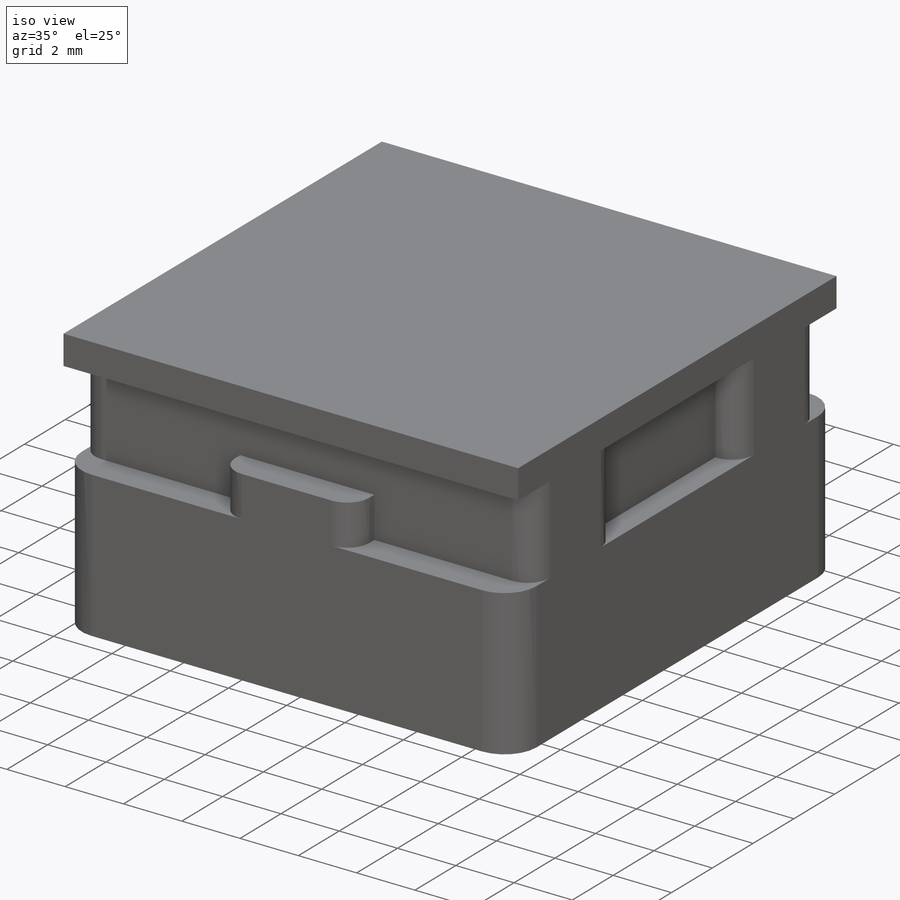
[diagram: iso view]
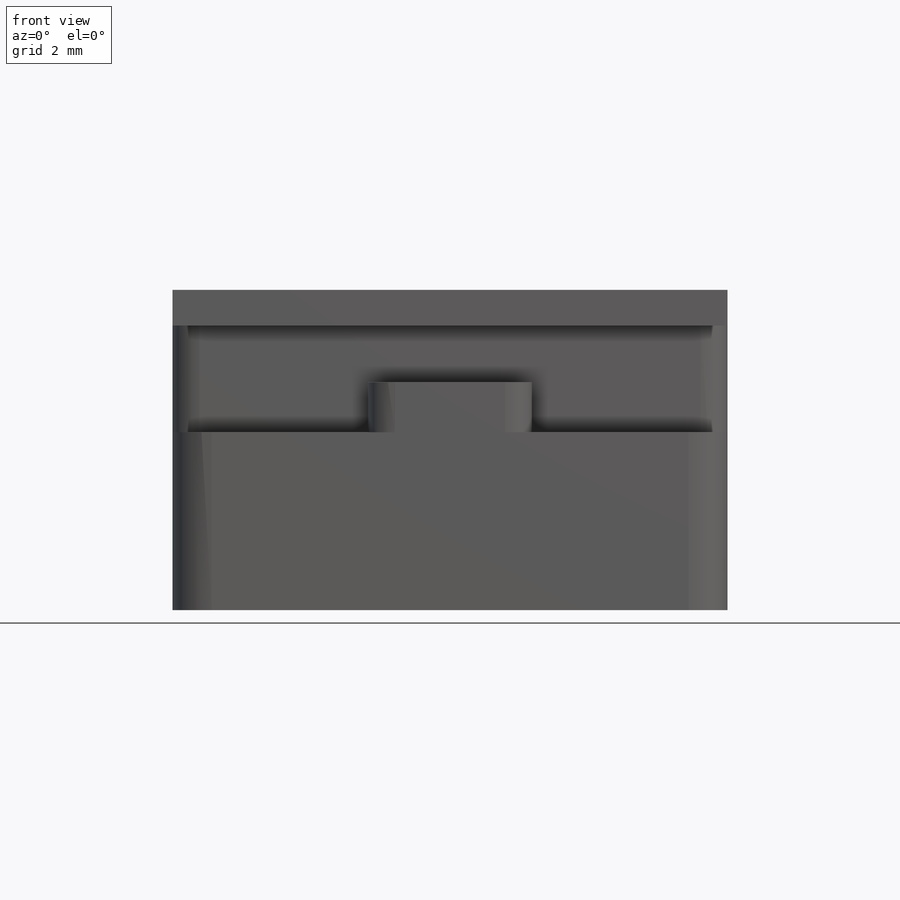
[diagram: front view]
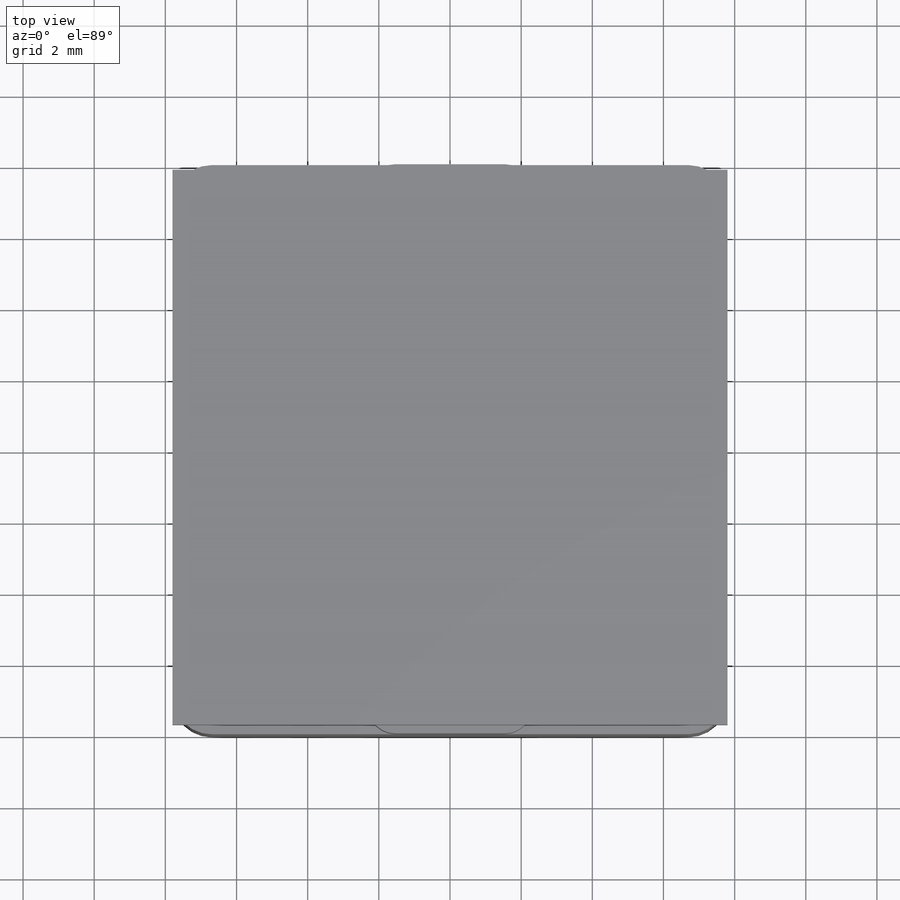
[diagram: top view]
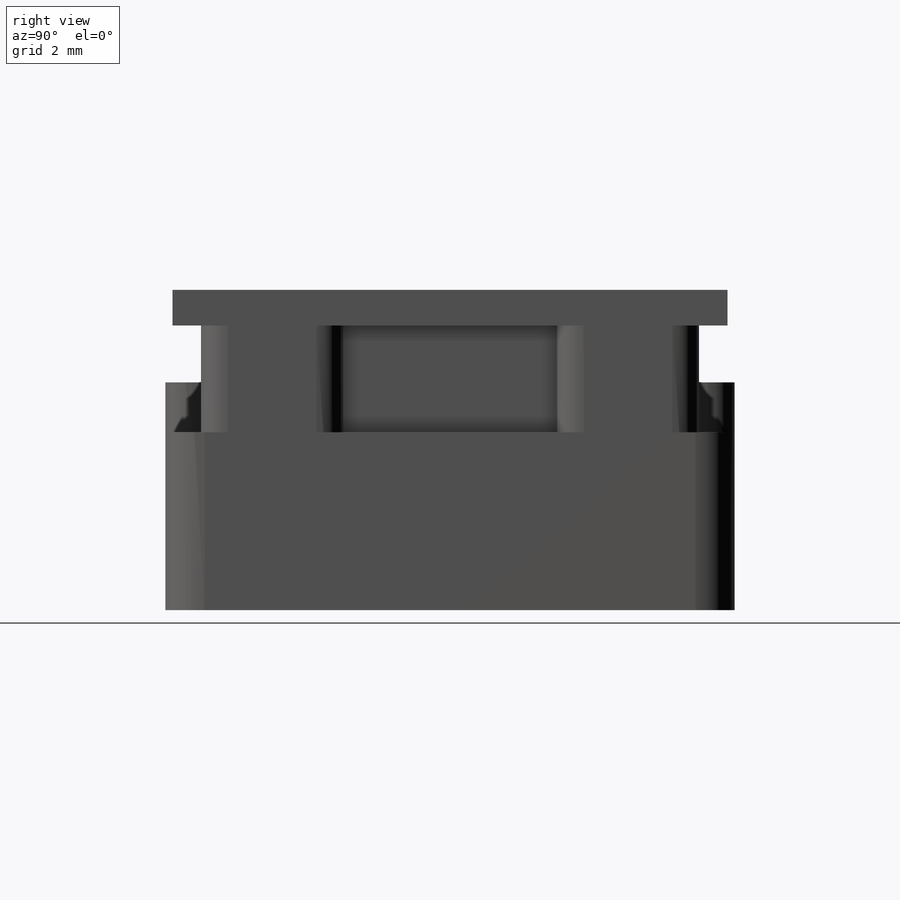
[diagram: right view]
SOLIDWORKS PART (.sldprt)
format: sldprt  version: not decoded by parser v0  size: 822,784 bytes
history: native  units: mm
features: sketch x5, extrude x4, plane x3, material x1, mirror x1, fillet x1 (+11 scaffold rows collapsed)
feature tree (26):
  scaffold x11  (default folders/planes/origin — collapsed)
  material  "Material <not specified>"
  sketch  "Sketch5"  dims[D1=6.0mm D2=3.0mm]
  plane  "pl Lock lip"  Offset=1.6mm
  plane  "pl Switch Top plate"
  plane  "pl Switch Room"
  sketch  "Sketch2"  dims[D1=15.6mm]
  extrude  "Boss-Extrude2"  Depth=1mm
  sketch  "Cutout"  dims[c1.D1=14.0mm c1.D2=3.81mm c1.D3=6.0mm c1.D4=15.8mm c2.D2=15.8mm c2.D4=14.0mm]
  extrude  "Boss-Extrude1"  [1 undecoded]
  sketch  "Sketch3"  dims[c1.D2=4.0mm c1.D3=4.0mm c1.D1=4.6mm c2.D2=1.0mm c2.D1=0.0mm]
  extrude  "Boss-Extrude3"  [1 undecoded]
  mirror  "Mirror1"
  fillet  "Fillet1"  Radius=0.61mm
  sketch  "Sketch4"  dims[D1=1.1mm]
  extrude  "Boss-Extrude4"  [1 undecoded]
decode coverage: 7 of 11 modeling features carry decoded parameters
note: 3 parameter values undecoded
summary: no parameter record found for 3 features
note: suppression state not decoded; provenance and decode notes live in map.json
